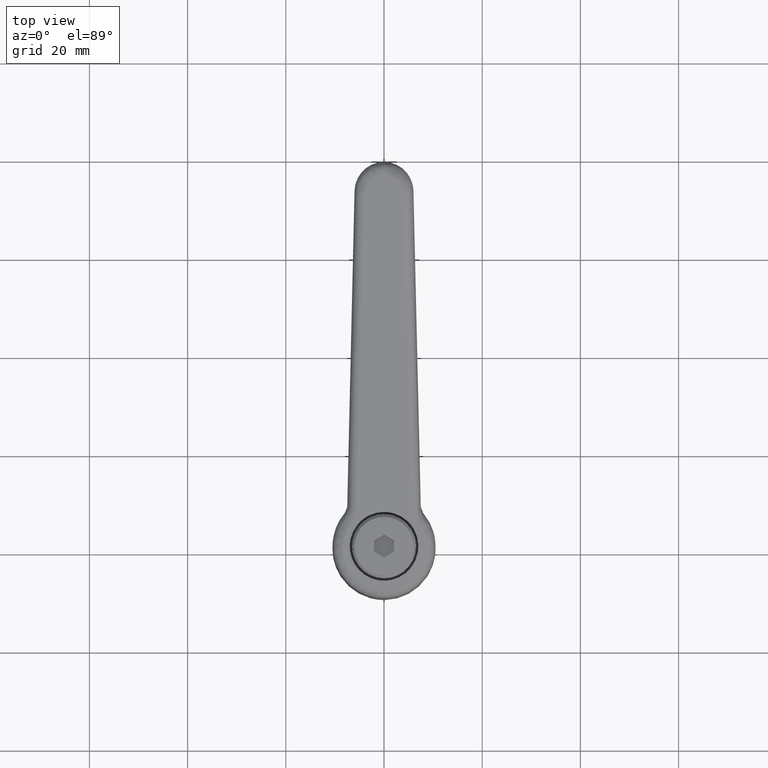
[diagram: clean part render]
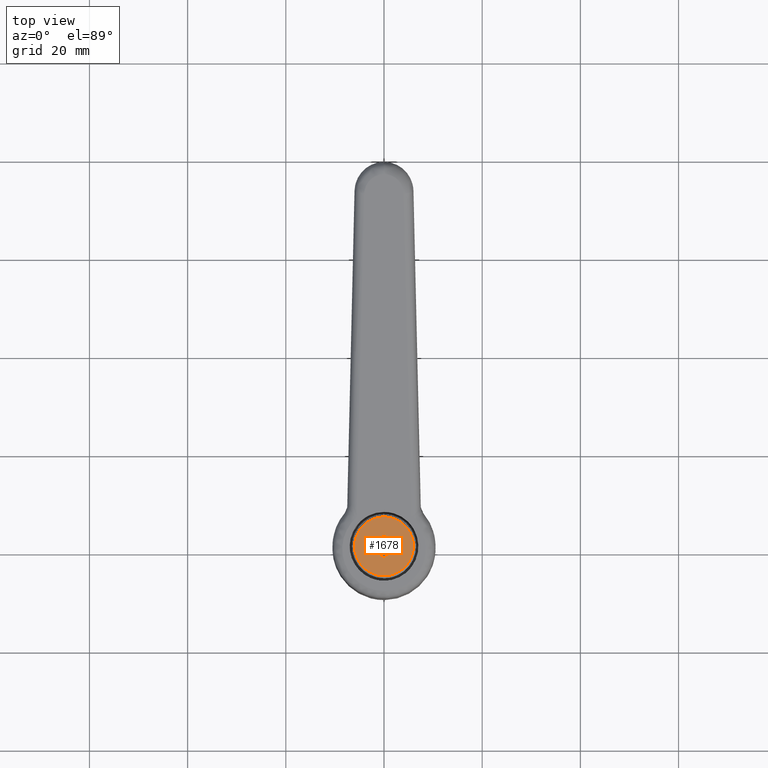
[diagram: same view with one face highlighted and labeled with its STEP entity id]
A machine part, top view. The second image highlights one B-rep face of the part: STEP entity #1678.
In plain terms, the highlighted face is a freeform B-spline surface patch.
Its self-contained STEP definition (entity closure, byte-faithful):
#1322=CARTESIAN_POINT('',(-3.874452589661481,-4.581334282577124,27.999999814492998));
#1323=VERTEX_POINT('',#1322);
#1324=CARTESIAN_POINT('',(-6.000000000000100,0.0,28.0));
#1325=VERTEX_POINT('',#1324);
#1326=CARTESIAN_POINT('',(-3.874452589661481,-4.581334282577124,27.999999814492998));
#1327=CARTESIAN_POINT('',(-4.226945034637617,-4.283360393124449,27.999999826558529));
#1328=CARTESIAN_POINT('',(-4.843844017115613,-3.625432681569748,27.999999853199320));
#1329=CARTESIAN_POINT('',(-5.519795495907543,-2.470457991449618,27.999999899966419));
#1330=CARTESIAN_POINT('',(-5.913988129240864,-1.248894011857020,27.999999949429849));
#1331=CARTESIAN_POINT('',(-6.000054343833012,-0.407252998114716,27.999999983509561));
#1332=CARTESIAN_POINT('',(-6.000000000000100,0.0,28.0));
#1333=B_SPLINE_CURVE_WITH_KNOTS('',3,(#1326,#1327,#1328,#1329,#1330,#1331,#1332),.UNSPECIFIED.,.F.,.U.,(4,1,1,1,4),(0.000000040129820,1.384664310204397,2.687857195554136,3.991089290971388,5.212850001664117),.UNSPECIFIED.);
#1334=EDGE_CURVE('',#1323,#1325,#1333,.T.);
#1336=CARTESIAN_POINT('',(0.000001504944411,5.999999999999911,28.0));
#1337=VERTEX_POINT('',#1336);
#1338=CARTESIAN_POINT('',(-6.000000000000100,0.0,28.0));
#1339=CARTESIAN_POINT('',(-6.000070342216897,0.417241682838065,28.000000000000171));
#1340=CARTESIAN_POINT('',(-5.928007355861166,1.104433974821075,27.999999999999861));
#1341=CARTESIAN_POINT('',(-5.653024956430780,2.074807400013985,28.000000000000050));
#1342=CARTESIAN_POINT('',(-5.187842286669787,3.107536030681701,28.000000000000050));
#1343=CARTESIAN_POINT('',(-4.464897546525018,4.082285751810152,28.000000000000028));
#1344=CARTESIAN_POINT('',(-3.457501021884657,4.951117907078975,27.999999999999989));
#1345=CARTESIAN_POINT('',(-2.533659195073190,5.474502314172823,28.000000000000121));
#1346=CARTESIAN_POINT('',(-1.349797723932946,5.889852089751545,27.999999999999780));
#1347=CARTESIAN_POINT('',(-0.539986900568433,6.000214666100526,28.000000000000050));
#1348=CARTESIAN_POINT('',(0.000001504944411,5.999999999999911,28.0));
#1349=B_SPLINE_CURVE_WITH_KNOTS('',3,(#1338,#1339,#1340,#1341,#1342,#1343,#1344,#1345,#1346,#1347,#1348),.UNSPECIFIED.,.F.,.U.,(4,1,1,1,1,1,1,1,4),(0.000000122391338,1.251713636847985,2.061683438983886,3.018898328777524,4.638822787342926,5.669623931464866,6.994995844994044,7.804953646614506,9.424837945473747),.UNSPECIFIED.);
#1350=EDGE_CURVE('',#1325,#1337,#1349,.T.);
#1352=CARTESIAN_POINT('',(6.000000000000100,0.0,28.0));
#1353=VERTEX_POINT('',#1352);
#1354=CARTESIAN_POINT('',(0.000001504944411,5.999999999999911,28.0));
#1355=CARTESIAN_POINT('',(0.662746743529455,6.000430300897611,28.000000000000011));
#1356=CARTESIAN_POINT('',(1.693279677081339,5.827401201863176,28.0));
#1357=CARTESIAN_POINT('',(2.974144750284835,5.250076002312088,27.999999999999989));
#1358=CARTESIAN_POINT('',(3.864635405182744,4.631073071770525,27.999999999999972));
#1359=CARTESIAN_POINT('',(4.561369255260751,3.934298135865129,28.000000000000121));
#1360=CARTESIAN_POINT('',(5.171777322327306,3.100690584694010,27.999999999999979));
#1361=CARTESIAN_POINT('',(5.599195546028668,2.238394308903020,28.000000000000121));
#1362=CARTESIAN_POINT('',(5.921024800006282,1.153513788146487,27.999999999999780));
#1363=CARTESIAN_POINT('',(6.000070180733292,0.441785587929178,28.000000000000469));
#1364=CARTESIAN_POINT('',(6.000000000000100,0.0,28.0));
#1365=B_SPLINE_CURVE_WITH_KNOTS('',3,(#1354,#1355,#1356,#1357,#1358,#1359,#1360,#1361,#1362,#1363,#1364),.UNSPECIFIED.,.F.,.U.,(4,1,1,1,1,1,1,1,4),(0.000000122914935,1.988046622173595,3.092539104642310,4.197003123376700,5.227825418462638,6.037764768281193,7.289522620974915,8.099489681806785,9.424836249040014),.UNSPECIFIED.);
#1366=EDGE_CURVE('',#1337,#1353,#1365,.T.);
#1368=CARTESIAN_POINT('',(4.352245817267043,-4.130127066218817,28.000000187860209));
#1369=VERTEX_POINT('',#1368);
#1370=CARTESIAN_POINT('',(6.000000000000100,0.0,28.0));
#1371=CARTESIAN_POINT('',(6.000228493502822,-0.569447279950439,28.000000025901642));
#1372=CARTESIAN_POINT('',(5.874048339785861,-1.447140962260409,28.000000065823610));
#1373=CARTESIAN_POINT('',(5.334942577758021,-2.871531677027389,28.000000130612630));
#1374=CARTESIAN_POINT('',(4.793547702503709,-3.665691035234696,28.000000166735120));
#1375=CARTESIAN_POINT('',(4.352245817267043,-4.130127066218817,28.000000187860209));
#1376=B_SPLINE_CURVE_WITH_KNOTS('',3,(#1370,#1371,#1372,#1373,#1374,#1375),.UNSPECIFIED.,.F.,.U.,(4,1,1,4),(0.000000031312537,1.708259733526523,2.633540539629737,4.555335842714962),.UNSPECIFIED.);
#1377=EDGE_CURVE('',#1353,#1369,#1376,.T.);
#1411=CARTESIAN_POINT('',(-0.000001504944439,-5.999999999999910,28.0));
#1412=VERTEX_POINT('',#1411);
#1413=CARTESIAN_POINT('',(-0.000001504944439,-5.999999999999910,28.0));
#1414=CARTESIAN_POINT('',(-0.416813781813806,-6.000052656662265,27.999999980043249));
#1415=CARTESIAN_POINT('',(-1.272348903885384,-5.910510847517079,27.999999939080499));
#1416=CARTESIAN_POINT('',(-2.613967144094473,-5.468833831799265,27.999999874844558));
#1417=CARTESIAN_POINT('',(-3.455797047886325,-4.935626877029051,27.999999834538009));
#1418=CARTESIAN_POINT('',(-3.874452589661481,-4.581334282577124,27.999999814492998));
#1419=B_SPLINE_CURVE_WITH_KNOTS('',3,(#1413,#1414,#1415,#1416,#1417,#1418),.UNSPECIFIED.,.F.,.U.,(4,1,1,4),(0.000000024096946,1.250435760879542,2.566669529858436,4.211988027997398),.UNSPECIFIED.);
#1420=EDGE_CURVE('',#1412,#1323,#1419,.T.);
#1426=CARTESIAN_POINT('',(4.352245817267043,-4.130127066218817,28.000000187860209));
#1427=CARTESIAN_POINT('',(4.072958295022999,-4.424518917297116,28.000000175805042));
#1428=CARTESIAN_POINT('',(3.512313832406252,-4.906412767641331,28.000000151605501));
#1429=CARTESIAN_POINT('',(2.654121185001063,-5.404901210428047,28.000000114562301));
#1430=CARTESIAN_POINT('',(1.521529580647743,-5.857977542213517,28.000000065675579));
#1431=CARTESIAN_POINT('',(0.634100939288772,-6.000347135127780,28.000000027370159));
#1432=CARTESIAN_POINT('',(-0.000001504944439,-5.999999999999910,28.0));
#1433=B_SPLINE_CURVE_WITH_KNOTS('',3,(#1426,#1427,#1428,#1429,#1430,#1431,#1432),.UNSPECIFIED.,.F.,.U.,(4,1,1,1,4),(0.000000033220316,1.217375990423394,2.206504430713948,2.967350821862385,4.869502513900184),.UNSPECIFIED.);
#1434=EDGE_CURVE('',#1369,#1412,#1433,.T.);
#1495=CARTESIAN_POINT('',(-2.309402000000205,0.0,28.0));
#1496=VERTEX_POINT('',#1495);
#1502=CARTESIAN_POINT('',(-1.154701000000102,-2.0,28.0));
#1503=VERTEX_POINT('',#1502);
#1504=CARTESIAN_POINT('',(-1.154701000000102,-2.0,28.0));
#1505=CARTESIAN_POINT('',(-2.309402000000205,0.0,28.0));
#1506=QUASI_UNIFORM_CURVE('',1,(#1504,#1505),.UNSPECIFIED.,.F.,.U.);
#1507=EDGE_CURVE('',#1503,#1496,#1506,.T.);
#1524=CARTESIAN_POINT('',(1.154701000000000,-2.0,28.0));
#1525=VERTEX_POINT('',#1524);
#1526=CARTESIAN_POINT('',(1.154701000000000,-2.0,28.0));
#1527=CARTESIAN_POINT('',(-1.154701000000102,-2.0,28.0));
#1528=QUASI_UNIFORM_CURVE('',1,(#1526,#1527),.UNSPECIFIED.,.F.,.U.);
#1529=EDGE_CURVE('',#1525,#1503,#1528,.T.);
#1546=CARTESIAN_POINT('',(2.309402000000000,0.0,28.0));
#1547=VERTEX_POINT('',#1546);
#1548=CARTESIAN_POINT('',(2.309402000000000,0.0,28.0));
#1549=CARTESIAN_POINT('',(1.154701000000000,-2.0,28.0));
#1550=QUASI_UNIFORM_CURVE('',1,(#1548,#1549),.UNSPECIFIED.,.F.,.U.);
#1551=EDGE_CURVE('',#1547,#1525,#1550,.T.);
#1568=CARTESIAN_POINT('',(1.154701000000000,2.0,28.0));
#1569=VERTEX_POINT('',#1568);
#1570=CARTESIAN_POINT('',(1.154701000000000,2.0,28.0));
#1571=CARTESIAN_POINT('',(2.309402000000000,0.0,28.0));
#1572=QUASI_UNIFORM_CURVE('',1,(#1570,#1571),.UNSPECIFIED.,.F.,.U.);
#1573=EDGE_CURVE('',#1569,#1547,#1572,.T.);
#1590=CARTESIAN_POINT('',(-1.154701000000102,2.0,28.0));
#1591=VERTEX_POINT('',#1590);
#1592=CARTESIAN_POINT('',(-1.154701000000102,2.0,28.0));
#1593=CARTESIAN_POINT('',(1.154701000000000,2.0,28.0));
#1594=QUASI_UNIFORM_CURVE('',1,(#1592,#1593),.UNSPECIFIED.,.F.,.U.);
#1595=EDGE_CURVE('',#1591,#1569,#1594,.T.);
#1612=CARTESIAN_POINT('',(-2.309402000000205,0.0,28.0));
#1613=CARTESIAN_POINT('',(-1.154701000000102,2.0,28.0));
#1614=QUASI_UNIFORM_CURVE('',1,(#1612,#1613),.UNSPECIFIED.,.F.,.U.);
#1615=EDGE_CURVE('',#1496,#1591,#1614,.T.);
#1657=CARTESIAN_POINT('',(-6.599399976741782,-6.599399976741572,28.0));
#1658=CARTESIAN_POINT('',(6.599400298606862,-6.599399976741572,28.0));
#1659=CARTESIAN_POINT('',(-6.599399976741782,6.599400298606654,28.0));
#1660=CARTESIAN_POINT('',(6.599400298606862,6.599400298606654,28.0));
#1661=B_SPLINE_SURFACE_WITH_KNOTS('',1,1,((#1657,#1659),(#1658,#1660)),.UNSPECIFIED.,.F.,.F.,.U.,(2,2),(2,2),(0.0,13.198800275348640),(0.0,13.198800275348230),.UNSPECIFIED.);
#1662=ORIENTED_EDGE('',*,*,#1334,.F.);
#1663=ORIENTED_EDGE('',*,*,#1420,.F.);
#1664=ORIENTED_EDGE('',*,*,#1434,.F.);
#1665=ORIENTED_EDGE('',*,*,#1377,.F.);
#1666=ORIENTED_EDGE('',*,*,#1366,.F.);
#1667=ORIENTED_EDGE('',*,*,#1350,.F.);
#1668=EDGE_LOOP('',(#1662,#1663,#1664,#1665,#1666,#1667));
#1669=FACE_OUTER_BOUND('',#1668,.T.);
#1670=ORIENTED_EDGE('',*,*,#1615,.T.);
#1671=ORIENTED_EDGE('',*,*,#1595,.T.);
#1672=ORIENTED_EDGE('',*,*,#1573,.T.);
#1673=ORIENTED_EDGE('',*,*,#1551,.T.);
#1674=ORIENTED_EDGE('',*,*,#1529,.T.);
#1675=ORIENTED_EDGE('',*,*,#1507,.T.);
#1676=EDGE_LOOP('',(#1670,#1671,#1672,#1673,#1674,#1675));
#1677=FACE_BOUND('',#1676,.T.);
#1678=ADVANCED_FACE('',(#1669,#1677),#1661,.T.);